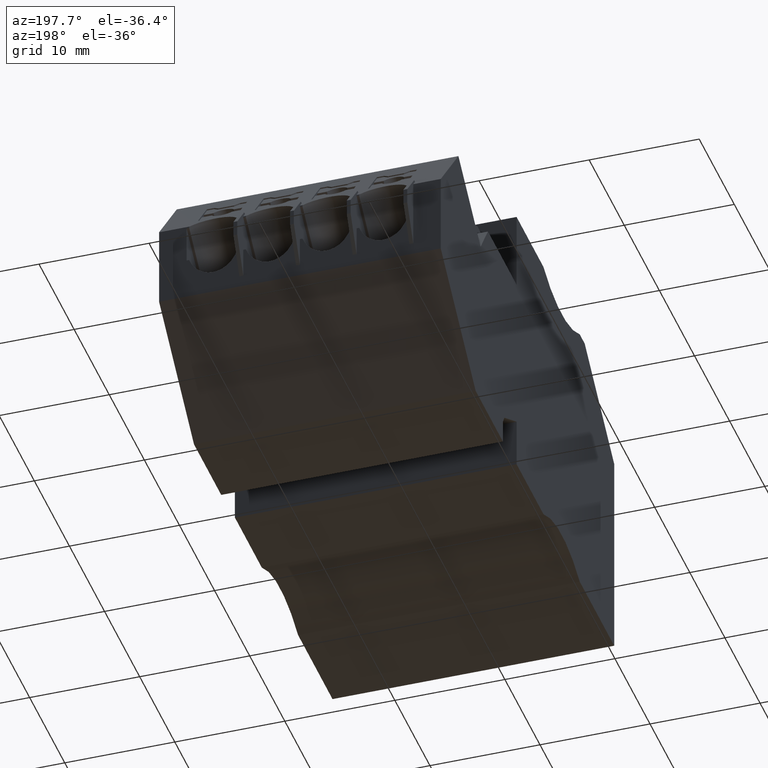
[diagram: clean part render]
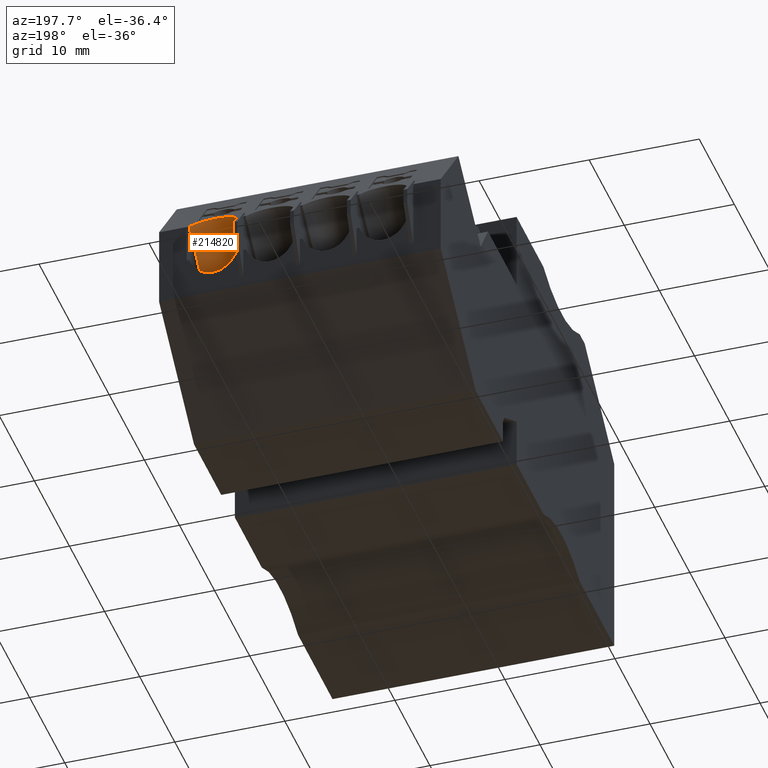
[diagram: same view with one face highlighted and labeled with its STEP entity id]
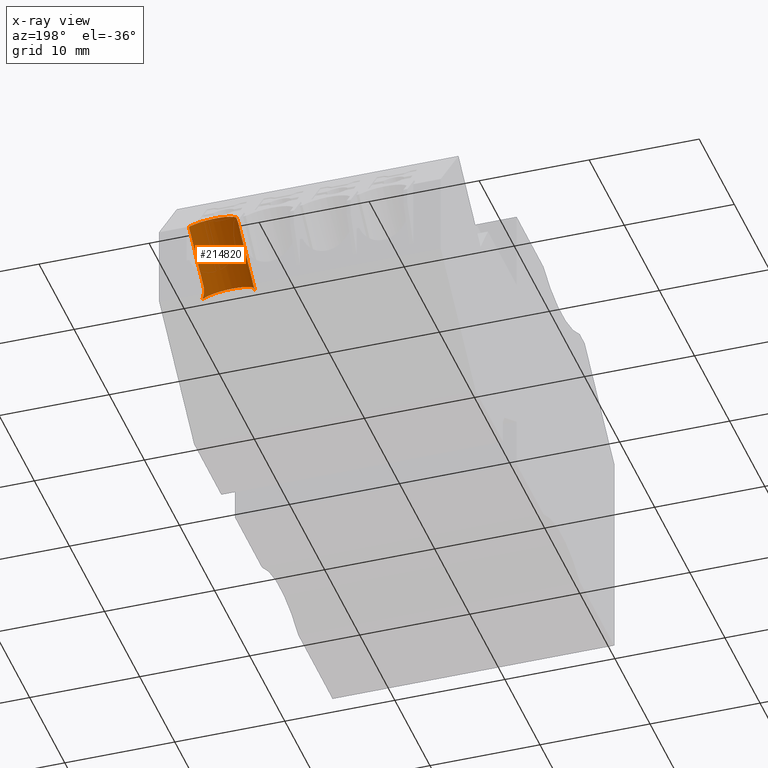
[diagram: x-ray of the same camera — body ghosted, the highlighted face saturated]
A machine part, auxiliary view. The second image highlights one B-rep face of the part: STEP entity #214820.
The next image is the same camera in x-ray: the body ghosted, the highlighted face saturated — about 0% of this face is hidden behind the body in this view.
In plain terms, the highlighted cylindrical surface (edge-blend (fillet) strip) has radius 2.4 mm, axis along (-0, -0.766, -0.6428).
Its self-contained STEP definition (entity closure, byte-faithful):
#58960=CARTESIAN_POINT('',(464.396383044583,680.407457887092,
86.3199999862951));
#58970=DIRECTION('',(0.766044443617069,0.642787609092937,
-4.36836570012154E-10));
#58980=DIRECTION('',(-0.64278760909295,0.766044443617064,
-3.23765527076768E-10));
#58990=AXIS2_PLACEMENT_3D('',#58960,#58970,#58980);
#59000=CONICAL_SURFACE('',#58990,1.4398990952349,0.523598775598301);
#63370=CARTESIAN_POINT('',(466.421141188862,682.106431685554,
88.8199999842733));
#63380=DIRECTION('',(-2.80146045982863E-10,-5.85936008036318E-10,-1.));
#63390=DIRECTION('',(0.642787609095202,-0.766044443615169,
2.68778915406435E-10));
#63400=AXIS2_PLACEMENT_3D('',#63370,#63380,#63390);
#63410=CYLINDRICAL_SURFACE('',#63400,1.030190485256);
#63420=CARTESIAN_POINT('',(467.754961412319,683.225639752233,
86.3199999844305));
#63430=DIRECTION('',(-0.766044443609543,-0.642787609101911,
4.36973645764364E-10));
#63440=DIRECTION('',(-0.642787609101911,0.766044443609544,
-3.23562025759874E-10));
#63450=AXIS2_PLACEMENT_3D('',#63420,#63430,#63440);
#63460=CYLINDRICAL_SURFACE('',#63450,2.40000000000534);
#63470=CARTESIAN_POINT('',(465.743894975341,682.882724157505,
88.4877407442334));
#63480=CARTESIAN_POINT('',(465.733728210567,682.873854558491,
88.4878640153078));
#63490=CARTESIAN_POINT('',(465.723750203626,682.86479773396,
88.4881130848834));
#63500=CARTESIAN_POINT('',(465.713972005326,682.855567308529,
88.4884856706726));
#63510=CARTESIAN_POINT('',(465.704199150745,682.846341927463,
88.4888580528462));
#63520=CARTESIAN_POINT('',(465.694604772856,682.836923673702,
88.4893544524884));
#63530=CARTESIAN_POINT('',(465.685183536963,682.827305301649,
88.4899744726062));
#63540=CARTESIAN_POINT('',(465.666343762943,682.808071311758,
88.4912143352994));
#63550=CARTESIAN_POINT('',(465.648223436327,682.78806072942,
88.4929488511693));
#63560=CARTESIAN_POINT('',(465.630918064624,682.767370298229,
88.495152594131));
#63570=CARTESIAN_POINT('',(465.613612835404,682.746680037391,
88.4973563189482));
#63580=CARTESIAN_POINT('',(465.59712511981,682.72531283497,
88.5000288437646));
#63590=CARTESIAN_POINT('',(465.581534305831,682.703384546178,
88.5031234949533));
#63600=CARTESIAN_POINT('',(465.565943445436,682.681456192103,
88.5062181553551));
#63610=CARTESIAN_POINT('',(465.551251435927,682.658969685399,
88.5097342603518));
#63620=CARTESIAN_POINT('',(465.537514453727,682.636050632372,
88.513608012858));
#63630=CARTESIAN_POINT('',(465.53064601419,682.624591191888,
88.5155448745704));
#63640=CARTESIAN_POINT('',(465.524016102867,682.613023966455,
88.5175708727846));
#63650=CARTESIAN_POINT('',(465.517629414104,682.601364922228,
88.5196768959238));
#63660=CARTESIAN_POINT('',(465.511243616081,682.589707504066,
88.5217826253398));
#63670=CARTESIAN_POINT('',(465.505101004113,682.577960215221,
88.5239677996453));
#63680=CARTESIAN_POINT('',(465.499176146918,682.566076001672,
88.526235356276));
#63690=CARTESIAN_POINT('',(465.487330850709,682.54231643666,
88.5307687786147));
#63700=CARTESIAN_POINT('',(465.476399705324,682.518087727453,
88.5356177970559));
#63710=CARTESIAN_POINT('',(465.466425780554,682.493485848527,
88.5407144015746));
#63720=CARTESIAN_POINT('',(465.456451903556,682.468884087438,
88.5458109816819));
#63730=CARTESIAN_POINT('',(465.447435968388,682.44391079914,
88.5511546093508));
#63740=CARTESIAN_POINT('',(465.439408026665,682.418669470271,
88.5566700366009));
#63750=CARTESIAN_POINT('',(465.431380074861,682.393428109704,
88.5621854707773));
#63760=CARTESIAN_POINT('',(465.424340592779,682.367920292381,
88.5678721463724));
#63770=CARTESIAN_POINT('',(465.418304649975,682.342252194111,
88.5736517166212));
#63780=CARTESIAN_POINT('',(465.412266425516,682.31657439301,
88.5794334716129));
#63790=CARTESIAN_POINT('',(465.407239449841,682.290779840689,
88.5852980694632));
#63800=CARTESIAN_POINT('',(465.40320431194,682.264851856631,
88.5911956394637));
#63810=CARTESIAN_POINT('',(465.399165439488,682.238899876021,
88.5970986677112));
#63820=CARTESIAN_POINT('',(465.39611073125,682.212733337524,
88.6030532939795));
#63830=CARTESIAN_POINT('',(465.394062993916,682.186449292883,
88.6089848983222));
#63840=CARTESIAN_POINT('',(465.392015264608,682.16016535126,
88.6149164794162));
#63850=CARTESIAN_POINT('',(465.390974677164,682.133765290923,
88.6208245637186));
#63860=CARTESIAN_POINT('',(465.390951113458,682.107350688424,
88.6266354208632));
#63870=CARTESIAN_POINT('',(465.390927549725,682.080936056756,
88.6324462844248));
#63880=CARTESIAN_POINT('',(465.391921012787,682.05450836482,
88.6381594503758));
#63890=CARTESIAN_POINT('',(465.393927746271,682.028169438001,
88.6437053556744));
#63900=CARTESIAN_POINT('',(465.395934722687,682.00182732263,
88.6492519323521));
#63910=CARTESIAN_POINT('',(465.398953036614,681.975588642061,
88.6546281794928));
#63920=CARTESIAN_POINT('',(465.402971757939,681.949513088923,
88.6597790736632));
#63930=CARTESIAN_POINT('',(465.406993884341,681.923415441881,
88.6649343322034));
#63940=CARTESIAN_POINT('',(465.412036736446,681.897369665444,
88.6698857098205));
#63950=CARTESIAN_POINT('',(465.41809748531,681.871493896343,
88.6745673914553));
#63960=CARTESIAN_POINT('',(465.424158217982,681.845618196371,
88.6792490605826));
#63970=CARTESIAN_POINT('',(465.431236399512,681.819914736525,
88.6836604763837));
#63980=CARTESIAN_POINT('',(465.439310239432,681.794501528666,
88.6877443469201));
#63990=CARTESIAN_POINT('',(465.447384121278,681.769088188842,
88.6918282386632));
#64000=CARTESIAN_POINT('',(465.456452861483,681.74396744633,
88.6955841161876));
#64010=CARTESIAN_POINT('',(465.466477576682,681.719249785652,
88.6989663479126));
#64020=B_SPLINE_CURVE_WITH_KNOTS('',3,(#63470,#63480,#63490,#63500,
#63510,#63520,#63530,#63540,#63550,#63560,#63570,#63580,#63590,#63600,
#63610,#63620,#63630,#63640,#63650,#63660,#63670,#63680,#63690,#63700,
#63710,#63720,#63730,#63740,#63750,#63760,#63770,#63780,#63790,#63800,
#63810,#63820,#63830,#63840,#63850,#63860,#63870,#63880,#63890,#63900,
#63910,#63920,#63930,#63940,#63950,#63960,#63970,#63980,#63990,#64000,
#64010),.UNSPECIFIED.,.F.,.F.,(4,3,3,3,3,3,3,3,3,3,3,3,3,3,3,3,3,3,4),(
0.,0.0404189289105887,0.0807920273015004,0.161834032942855,
0.243077001978251,0.324226837810591,0.364669004795522,0.405030638602429,
0.485993291710152,0.567143228697294,0.648238819222113,0.729045233551723,
0.809977517010918,0.891100341142566,0.97217476387002,1.05298427384248,
1.13384091501735,1.21480330436618,1.29561422931419),.UNSPECIFIED.);
#64030=SURFACE_CURVE('',#64020,(#63460,#63410),.CURVE_3D.);
#64040=CARTESIAN_POINT('',(465.74389497534,682.882724157505,
88.4877407442334));
#64050=VERTEX_POINT('',#64040);
#64060=CARTESIAN_POINT('',(465.466477576705,681.719249785595,
88.6989663479202));
#64070=VERTEX_POINT('',#64060);
#64080=EDGE_CURVE('',#64050,#64070,#64030,.T.);
#82120=CARTESIAN_POINT('',(465.670271708826,681.476377392659,
83.9199999856324));
#82130=VERTEX_POINT('',#82120);
#82160=CARTESIAN_POINT('',(467.754961411991,683.225639750993,
83.9199999844251));
#82170=DIRECTION('',(-0.766044443609542,-0.64278760910191,
4.36973645764364E-10));
#82180=VECTOR('',#82170,1.);
#82190=LINE('',#82160,#82180);
#82200=CARTESIAN_POINT('',(469.853158774129,684.986236380971,
83.9199999832408));
#82210=VERTEX_POINT('',#82200);
#82220=EDGE_CURVE('',#82210,#82130,#82190,.T.);
#185170=CARTESIAN_POINT('',(469.853158776184,686.448039195061,
84.1972577237183));
#185180=VERTEX_POINT('',#185170);
#185210=CARTESIAN_POINT('',(470.572956147437,685.590218091465,
86.319999982823));
#185220=DIRECTION('',(-0.766044443609541,-0.642787609101909,
4.36973645764363E-10));
#185230=DIRECTION('',(-0.642787609101909,0.766044443609542,
-3.23562025759873E-10));
#185240=AXIS2_PLACEMENT_3D('',#185210,#185220,#185230);
#185250=CIRCLE('',#185240,2.40000000000534);
#185260=CARTESIAN_POINT('',(469.853158776086,686.448039196836,
88.4427422411771));
#185270=VERTEX_POINT('',#185260);
#185280=EDGE_CURVE('',#185270,#185180,#185250,.T.);
#212660=ORIENTED_EDGE('',*,*,#64080,.T.);
#212670=CARTESIAN_POINT('',(467.09289017517,684.014665530355,
88.4877407434757));
#212680=DIRECTION('',(-0.766044443609541,-0.642787609101909,
4.36973645764363E-10));
#212690=VECTOR('',#212680,1.);
#212700=LINE('',#212670,#212690);
#212710=CARTESIAN_POINT('',(469.853158775932,686.330805891583,
88.4877407419012));
#212720=VERTEX_POINT('',#212710);
#212730=EDGE_CURVE('',#212720,#64050,#212700,.T.);
#212740=ORIENTED_EDGE('',*,*,#212730,.T.);
#212750=CARTESIAN_POINT('',(469.853158773916,684.986236381758,
86.3199999832336));
#212760=DIRECTION('',(-1.,1.34569982934711E-9,9.53016587669485E-11));
#212770=DIRECTION('',(-1.3456997738356E-9,-1.,5.66234217872408E-10));
#212780=AXIS2_PLACEMENT_3D('',#212750,#212760,#212770);
#212790=ELLIPSE('',#212780,3.13297749593582,2.40000000000534);
#212800=EDGE_CURVE('',#212720,#185270,#212790,.T.);
#212810=ORIENTED_EDGE('',*,*,#212800,.F.);
#212820=ORIENTED_EDGE('',*,*,#185280,.F.);
#212830=EDGE_CURVE('',#185180,#82210,#212790,.T.);
#212840=ORIENTED_EDGE('',*,*,#212830,.F.);
#212850=ORIENTED_EDGE('',*,*,#82220,.F.);
#212860=CARTESIAN_POINT('',(465.670271708757,681.476377392729,
83.9199999856143));
#212870=CARTESIAN_POINT('',(465.644124579058,681.507538328528,
83.9199999856035));
#212880=CARTESIAN_POINT('',(465.617935386311,681.538749393117,
83.9210348133238));
#212890=CARTESIAN_POINT('',(465.591754541304,681.569950509258,
83.9231105166494));
#212900=CARTESIAN_POINT('',(465.565573746587,681.601151565467,
83.9251862159879));
#212910=CARTESIAN_POINT('',(465.539401694231,681.632342202935,
83.9283027886246));
#212920=CARTESIAN_POINT('',(465.513289968972,681.663460945369,
83.9324580534131));
#212930=CARTESIAN_POINT('',(465.487178258521,681.694579670156,
83.9366133158453));
#212940=CARTESIAN_POINT('',(465.461127275283,681.725626023069,
83.9418072153458));
#212950=CARTESIAN_POINT('',(465.435188480274,681.756538675258,
83.9480291738362));
#212960=CARTESIAN_POINT('',(465.409249665464,681.787451351045,
83.9542511370764));
#212970=CARTESIAN_POINT('',(465.383423434127,681.818229855074,
83.961501052861));
#212980=CARTESIAN_POINT('',(465.357759862123,681.848814509258,
83.9697602232562));
#212990=CARTESIAN_POINT('',(465.332096235581,681.879399228439,
83.9780194112032));
#213000=CARTESIAN_POINT('',(465.306595648458,681.909789644808,
83.987287698741));
#213010=CARTESIAN_POINT('',(465.281305564872,681.939929192829,
83.9975389916872));
#213020=CARTESIAN_POINT('',(465.25601539097,681.970068848485,
84.0077903212431));
#213030=CARTESIAN_POINT('',(465.23093607488,681.999957213587,
84.0190244569976));
#213040=CARTESIAN_POINT('',(465.206111279694,682.029542252487,
84.0312090963129));
#213050=CARTESIAN_POINT('',(465.15654181429,682.088616841069,
84.0555390475764));
#213060=CARTESIAN_POINT('',(465.107626017463,682.146912417777,
84.0838325599739));
#213070=CARTESIAN_POINT('',(465.059555283225,682.20420088811,
84.116072035708));
#213080=CARTESIAN_POINT('',(465.035527719864,682.232835823121,
84.1321865398494));
#213090=CARTESIAN_POINT('',(465.011728549177,682.261198570341,
84.1492763238991));
#213100=CARTESIAN_POINT('',(464.98820568746,682.289232025354,
84.1673148506777));
#213110=CARTESIAN_POINT('',(464.964682863672,682.317265435166,
84.1853533483712));
#213120=CARTESIAN_POINT('',(464.941436711466,682.344969120626,
84.20434033781));
#213130=CARTESIAN_POINT('',(464.91851390136,682.372287461975,
84.224241090048));
#213140=CARTESIAN_POINT('',(464.895591097412,682.399605795987,
84.2441418369405));
#213150=CARTESIAN_POINT('',(464.872991988051,682.426538365813,
84.2649560452519));
#213160=CARTESIAN_POINT('',(464.850760791547,682.453032474168,
84.2866415051409));
#213170=CARTESIAN_POINT('',(464.828529571386,682.479526610717,
84.3083269881069));
#213180=CARTESIAN_POINT('',(464.806666597353,682.505581888619,
84.3308833786364));
#213190=CARTESIAN_POINT('',(464.785212571993,682.531149800473,
84.3542620849613));
#213200=CARTESIAN_POINT('',(464.763758494277,682.55671777472,
84.3776408483374));
#213210=CARTESIAN_POINT('',(464.742713670528,682.581798019083,
84.4018415499332));
#213220=CARTESIAN_POINT('',(464.72211436756,682.606347312453,
84.4268107085605));
#213230=CARTESIAN_POINT('',(464.701514984004,682.630896701866,
84.4517799648727));
#213240=CARTESIAN_POINT('',(464.68136138978,682.65491482024,
84.477517277974));
#213250=CARTESIAN_POINT('',(464.661684648236,682.678364647719,
84.5039661802543));
#213260=CARTESIAN_POINT('',(464.642020379644,682.701799610513,
84.5303983167568));
#213270=CARTESIAN_POINT('',(464.622744961205,682.72477115974,
84.5576580440091));
#213280=CARTESIAN_POINT('',(464.603886503971,682.747245793951,
84.5857231611353));
#213290=CARTESIAN_POINT('',(464.585029067875,682.76971921122,
84.6137867586085));
#213300=CARTESIAN_POINT('',(464.566593102194,682.791690339606,
84.6426495643088));
#213310=CARTESIAN_POINT('',(464.54861791985,682.813112327794,
84.6722644202233));
#213320=CARTESIAN_POINT('',(464.533376554604,682.831276279628,
84.6973751994675));
#213330=CARTESIAN_POINT('',(464.518466604576,682.849045266183,
84.7230262993095));
#213340=CARTESIAN_POINT('',(464.503910808062,682.866392189017,
84.7491845547735));
#213350=CARTESIAN_POINT('',(464.489355025148,682.883739095642,
84.7753427857959));
#213360=CARTESIAN_POINT('',(464.475153514899,682.900663796545,
84.8020079736097));
#213370=CARTESIAN_POINT('',(464.461327331062,682.917141200849,
84.8291434723052));
#213380=CARTESIAN_POINT('',(464.447501150425,682.933618601339,
84.8562789647221));
#213390=CARTESIAN_POINT('',(464.434050407224,682.949648572915,
84.8838845541128));
#213400=CARTESIAN_POINT('',(464.420994058662,682.965208523264,
84.9119207192987));
#213410=CARTESIAN_POINT('',(464.407937704031,682.980768480844,
84.9399568975161));
#213420=CARTESIAN_POINT('',(464.395275844879,682.99585829702,
84.968423426504));
#213430=CARTESIAN_POINT('',(464.383025014736,683.010458267897,
84.9972786167097));
#213440=CARTESIAN_POINT('',(464.370774170202,683.025058255926,
85.0261338408122));
#213450=CARTESIAN_POINT('',(464.358934443454,683.039168292855,
85.0553774941921));
#213460=CARTESIAN_POINT('',(464.347519702158,683.052771851844,
85.0849665281878));
#213470=CARTESIAN_POINT('',(464.336104938964,683.066375436931,
85.1145556189482));
#213480=CARTESIAN_POINT('',(464.325115236185,683.079472454741,
85.1444898560617));
#213490=CARTESIAN_POINT('',(464.314561641137,683.092049739594,
85.1747257464689));
#213500=CARTESIAN_POINT('',(464.304007643314,683.104627504457,
85.2049627908227));
#213510=CARTESIAN_POINT('',(464.293891336716,683.116683649229,
85.2354965514605));
#213520=CARTESIAN_POINT('',(464.284216638233,683.128213505943,
85.2662975611428));
#213530=CARTESIAN_POINT('',(464.274537044695,683.139749196356,
85.2971141550443));
#213540=CARTESIAN_POINT('',(464.265262687306,683.150801945132,
85.3283159885546));
#213550=CARTESIAN_POINT('',(464.256410273254,683.16135184142,
85.3598661661419));
#213560=CARTESIAN_POINT('',(464.247557882039,683.171901710492,
85.3914162623386));
#213570=CARTESIAN_POINT('',(464.239127514749,683.181948631034,
85.4233144844769));
#213580=CARTESIAN_POINT('',(464.231134331851,683.191474535507,
85.455520139629));
#213590=CARTESIAN_POINT('',(464.223141163285,683.201000422899,
85.4877257370311));
#213600=CARTESIAN_POINT('',(464.215585251437,683.210005208027,
85.5202385293769));
#213610=CARTESIAN_POINT('',(464.208479744138,683.218473221914,
85.5530147334426));
#213620=CARTESIAN_POINT('',(464.201374244345,683.226941226855,
85.5857909028848));
#213630=CARTESIAN_POINT('',(464.194719211602,683.234872386072,
85.6188302311674));
#213640=CARTESIAN_POINT('',(464.188525426697,683.242253851519,
85.6520865998615));
#213650=CARTESIAN_POINT('',(464.182331643961,683.249635314382,
85.6853429569118));
#213660=CARTESIAN_POINT('',(464.17659916051,683.256467022164,
85.7188160916221));
#213670=CARTESIAN_POINT('',(464.171336142157,683.262739243227,
85.7524583490119));
#213680=CARTESIAN_POINT('',(464.166073121984,683.26901146646,
85.7861006180343));
#213690=CARTESIAN_POINT('',(464.161279606344,683.274724155978,
85.8199117419927));
#213700=CARTESIAN_POINT('',(464.156961001759,683.279870868541,
85.8538433704837));
#213710=CARTESIAN_POINT('',(464.15264239263,683.285017586517,
85.8877750346665));
#213720=CARTESIAN_POINT('',(464.148798721249,683.289598295726,
85.9218269356213));
#213730=CARTESIAN_POINT('',(464.145432593999,683.29360989,
85.9559509119566));
#213740=CARTESIAN_POINT('',(464.142066460729,683.297621491449,
85.9900749493214));
#213750=CARTESIAN_POINT('',(464.139177885026,683.301063961951,
86.0242707995181));
#213760=CARTESIAN_POINT('',(464.136766738563,683.30393745444,
86.0584914191881));
#213770=CARTESIAN_POINT('',(464.134355585892,683.306810954327,
86.0927121269635));
#213780=CARTESIAN_POINT('',(464.132421862359,683.309115476324,
86.1269573525273));
#213790=CARTESIAN_POINT('',(464.130962882382,683.31085422098,
86.1611821441993));
#213800=CARTESIAN_POINT('',(464.12950467653,683.31259204307,
86.1953887764341));
#213810=CARTESIAN_POINT('',(464.128515050185,683.31377143385,
86.2297039425664));
#213820=CARTESIAN_POINT('',(464.127999938564,683.314385320001,
86.2641014234175));
#213830=CARTESIAN_POINT('',(464.127484849482,683.314999179291,
86.2984973991841));
#213840=CARTESIAN_POINT('',(464.127444509298,683.315047254875,
86.3329693523481));
#213850=CARTESIAN_POINT('',(464.12788325204,683.31452438166,
86.3674710165133));
#213860=CARTESIAN_POINT('',(464.128321993939,683.314001509451,
86.4019726143249));
#213870=CARTESIAN_POINT('',(464.12923982869,683.312907676613,
86.4365036619716));
#213880=CARTESIAN_POINT('',(464.13063850274,683.311240801813,
86.471016090831));
#213890=CARTESIAN_POINT('',(464.13203717514,683.309573928978,
86.5055284789928));
#213900=CARTESIAN_POINT('',(464.133916684038,683.307334017519,
86.5400219784935));
#213910=CARTESIAN_POINT('',(464.136276029228,683.304522259434,
86.5744476317341));
#213920=CARTESIAN_POINT('',(464.13863537331,683.301710502669,
86.6088732688232));
#213930=CARTESIAN_POINT('',(464.141474538206,683.298326917724,
86.6432307864119));
#213940=CARTESIAN_POINT('',(464.144789727815,683.294376028617,
86.6774712275452));
#213950=CARTESIAN_POINT('',(464.148104918177,683.290425138613,
86.7117116764516));
#213960=CARTESIAN_POINT('',(464.151896105383,683.285906977659,
86.745834777399));
#213970=CARTESIAN_POINT('',(464.15615675462,683.280829333642,
86.7797924405842));
#213980=CARTESIAN_POINT('',(464.160417407819,683.275751684903,
86.8137501353482));
#213990=CARTESIAN_POINT('',(464.165147483306,683.270114600465,
86.8475421276099));
#214000=CARTESIAN_POINT('',(464.170337870723,683.263928937628,
86.8811220390715));
#214010=CARTESIAN_POINT('',(464.175528266757,683.257743264524,
86.9147020062731));
#214020=CARTESIAN_POINT('',(464.181178923876,683.251009073617,
86.9480696398033));
#214030=CARTESIAN_POINT('',(464.187278427773,683.243739967948,
86.981181094891));
#214040=CARTESIAN_POINT('',(464.193377946531,683.23647084457,
87.0142926306508));
#214050=CARTESIAN_POINT('',(464.199926251199,683.228666878968,
87.0471477522984));
#214060=CARTESIAN_POINT('',(464.206910008496,683.220343961132,
87.0797059454814));
#214070=CARTESIAN_POINT('',(464.213890448207,683.21202499704,
87.1122486721194));
#214080=CARTESIAN_POINT('',(464.221313581504,683.203178451277,
87.144537197461));
#214090=CARTESIAN_POINT('',(464.229205652085,683.193773047819,
87.1766684086918));
#214100=CARTESIAN_POINT('',(464.237094930096,683.184370972416,
87.2087882504537));
#214110=CARTESIAN_POINT('',(464.245442104829,683.17442319695,
87.2407012466065));
#214120=CARTESIAN_POINT('',(464.254240198364,683.16393803738,
87.2723622250286));
#214130=CARTESIAN_POINT('',(464.263038273821,683.153452899354,
87.304023138395));
#214140=CARTESIAN_POINT('',(464.272287215041,683.142430440435,
87.3354317876786));
#214150=CARTESIAN_POINT('',(464.281977206327,683.130882358513,
87.3665427203031));
#214160=CARTESIAN_POINT('',(464.291667184987,683.119334291639,
87.3976536123881));
#214170=CARTESIAN_POINT('',(464.301798146555,683.107260681799,
87.4284665401729));
#214180=CARTESIAN_POINT('',(464.312357500205,683.094676534155,
87.4589367239019));
#214190=CARTESIAN_POINT('',(464.322916847639,683.082092393919,
87.4894068896947));
#214200=CARTESIAN_POINT('',(464.333904507221,683.068997811142,
87.5195340674811));
#214210=CARTESIAN_POINT('',(464.345305271952,683.055410908819,
87.5492750154954));
#214220=CARTESIAN_POINT('',(464.356706037919,683.041824005021,
87.5790159667361));
#214230=CARTESIAN_POINT('',(464.368519817822,683.02774489038,
87.6083704525307));
#214240=CARTESIAN_POINT('',(464.380729040231,683.013194505712,
87.6372975487748));
#214250=CARTESIAN_POINT('',(464.392938272514,682.998644109276,
87.6662246684144));
#214260=CARTESIAN_POINT('',(464.405542846499,682.983622562945,
87.6947241754609));
#214270=CARTESIAN_POINT('',(464.418523170212,682.968153215525,
87.7227581591109));
#214280=CARTESIAN_POINT('',(464.433831749414,682.949909161262,
87.7558205440357));
#214290=CARTESIAN_POINT('',(464.449662826195,682.93104241863,
87.7882348818866));
#214300=CARTESIAN_POINT('',(464.465981526864,682.911594548478,
87.819945609991));
#214310=CARTESIAN_POINT('',(464.482300292136,682.892146601333,
87.8516564636343));
#214320=CARTESIAN_POINT('',(464.499106420607,682.872117837343,
87.882663296397));
#214330=CARTESIAN_POINT('',(464.516363221417,682.851551982975,
87.9129187065582));
#214340=CARTESIAN_POINT('',(464.533611864662,682.830995850412,
87.9431598145065));
#214350=CARTESIAN_POINT('',(464.551391062557,682.809807427438,
87.9727913028267));
#214360=CARTESIAN_POINT('',(464.569680068143,682.788011439316,
88.0017592343439));
#214370=CARTESIAN_POINT('',(464.587968596246,682.766216020236,
88.0307264095754));
#214380=CARTESIAN_POINT('',(464.606765030736,682.743815301893,
88.059026727192));
#214390=CARTESIAN_POINT('',(464.626038443834,682.720846142579,
88.0865996633011));
#214400=CARTESIAN_POINT('',(464.64531180579,682.697877044213,
88.1141725262458));
#214410=CARTESIAN_POINT('',(464.6650618789,682.674339823616,
88.1410175707403));
#214420=CARTESIAN_POINT('',(464.685252839377,682.650277173914,
88.16707798416));
#214430=CARTESIAN_POINT('',(464.705443774288,682.62621455468,
88.1931383645818));
#214440=CARTESIAN_POINT('',(464.726075297491,682.601626862766,
88.2184137031254));
#214450=CARTESIAN_POINT('',(464.747107455891,682.576561712414,
88.2428526130506));
#214460=CARTESIAN_POINT('',(464.768139615755,682.551496560318,
88.2672915246768));
#214470=CARTESIAN_POINT('',(464.78957208805,682.525954334443,
88.2908936339473));
#214480=CARTESIAN_POINT('',(464.811361731796,682.499986448207,
88.3136143301609));
#214490=CARTESIAN_POINT('',(464.833151406228,682.4740185254,
88.3363350583716));
#214500=CARTESIAN_POINT('',(464.855297913964,682.44762534522,
88.3581740464744));
#214510=CARTESIAN_POINT('',(464.877756040189,682.420860792585,
88.3790944526314));
#214520=CARTESIAN_POINT('',(464.900214229387,682.394096164902,
88.4000149174494));
#214530=CARTESIAN_POINT('',(464.922983692599,682.366960575293,
88.4200165286795));
#214540=CARTESIAN_POINT('',(464.946018432164,682.339508841636,
88.4390708420856));
#214550=CARTESIAN_POINT('',(464.969057113271,682.312052410632,
88.4581284159312));
#214560=CARTESIAN_POINT('',(464.99234378805,682.284300432279,
88.4762256751995));
#214570=CARTESIAN_POINT('',(465.015881665172,682.256249082628,
88.4933784201045));
#214580=CARTESIAN_POINT('',(465.039438480653,682.22817516312,
88.5105449659497));
#214590=CARTESIAN_POINT('',(465.063329649086,682.199702777279,
88.5268241935663));
#214600=CARTESIAN_POINT('',(465.08751516111,682.170879606406,
88.5421749298042));
#214610=CARTESIAN_POINT('',(465.111700581272,682.142056545009,
88.557525607737));
#214620=CARTESIAN_POINT('',(465.136180014737,682.112883092201,
88.5719475228479));
#214630=CARTESIAN_POINT('',(465.1609090282,682.083412201533,
88.5854046738816));
#214640=CARTESIAN_POINT('',(465.185637983917,682.053941379683,
88.5988617934911));
#214650=CARTESIAN_POINT('',(465.210616158625,682.024173550204,
88.611353915293));
#214660=CARTESIAN_POINT('',(465.235795768064,681.99416566016,
88.6228516890437));
#214670=CARTESIAN_POINT('',(465.260975353228,681.964157799046,
88.6343494517095));
#214680=CARTESIAN_POINT('',(465.286355991678,681.933910331955,
88.6448526770068));
#214690=CARTESIAN_POINT('',(465.311887696612,681.903482830838,
88.6543396878305));
#214700=CARTESIAN_POINT('',(465.337419410934,681.873055318532,
88.6638267021425));
#214710=CARTESIAN_POINT('',(465.363101799853,681.842448239233,
88.6722973620594));
#214720=CARTESIAN_POINT('',(465.388883892929,681.811722337147,
88.6797382477886));
#214730=CARTESIAN_POINT('',(465.414666030207,681.780996382382,
88.687179146275));
#214740=CARTESIAN_POINT('',(465.440547479424,681.750152072256,
88.6935901836502));
#214750=CARTESIAN_POINT('',(465.466477576617,681.719249785729,
88.698966347899));
#214760=B_SPLINE_CURVE_WITH_KNOTS('',3,(#212860,#212870,#212880,#212890,
#212900,#212910,#212920,#212930,#212940,#212950,#212960,#212970,#212980,
#212990,#213000,#213010,#213020,#213030,#213040,#213050,#213060,#213070,
#213080,#213090,#213100,#213110,#213120,#213130,#213140,#213150,#213160,
#213170,#213180,#213190,#213200,#213210,#213220,#213230,#213240,#213250,
#213260,#213270,#213280,#213290,#213300,#213310,#213320,#213330,#213340,
#213350,#213360,#213370,#213380,#213390,#213400,#213410,#213420,#213430,
#213440,#213450,#213460,#213470,#213480,#213490,#213500,#213510,#213520,
#213530,#213540,#213550,#213560,#213570,#213580,#213590,#213600,#213610,
#213620,#213630,#213640,#213650,#213660,#213670,#213680,#213690,#213700,
#213710,#213720,#213730,#213740,#213750,#213760,#213770,#213780,#213790,
#213800,#213810,#213820,#213830,#213840,#213850,#213860,#213870,#213880,
#213890,#213900,#213910,#213920,#213930,#213940,#213950,#213960,#213970,
#213980,#213990,#214000,#214010,#214020,#214030,#214040,#214050,#214060,
#214070,#214080,#214090,#214100,#214110,#214120,#214130,#214140,#214150,
#214160,#214170,#214180,#214190,#214200,#214210,#214220,#214230,#214240,
#214250,#214260,#214270,#214280,#214290,#214300,#214310,#214320,#214330,
#214340,#214350,#214360,#214370,#214380,#214390,#214400,#214410,#214420,
#214430,#214440,#214450,#214460,#214470,#214480,#214490,#214500,#214510,
#214520,#214530,#214540,#214550,#214560,#214570,#214580,#214590,#214600,
#214610,#214620,#214630,#214640,#214650,#214660,#214670,#214680,#214690,
#214700,#214710,#214720,#214730,#214740,#214750),.UNSPECIFIED.,.F.,.F.,(
4,3,3,3,3,3,3,3,3,3,3,3,3,3,3,3,3,3,3,3,3,3,3,3,3,3,3,3,3,3,3,3,3,3,3,3,
3,3,3,3,3,3,3,3,3,3,3,3,3,3,3,3,3,3,3,3,3,3,3,3,3,3,3,4),(0.,
0.122203827168845,0.244643683680575,0.367155009576453,0.48957031743321,
0.611726063434829,0.733469789630139,0.976855834598431,1.09912651185758,
1.22159692389104,1.34410125355457,1.46647229798384,1.5885483594199,
1.71018051254222,1.8317230923138,1.95372969733813,2.05744011235421,
2.16128579393798,2.26516552030074,2.36897707313305,2.47262023845367,
2.57599990714577,2.67903225511069,2.78212474343683,2.88555388876014,
2.98923140194137,3.09306111438264,3.1969422747518,3.30077262295646,
3.40445138889736,3.50788236551339,3.61097720367014,3.71400756760364,
3.81738531176427,3.92102712244802,4.02483793251664,4.12871755002141,
4.23256375982518,4.33627532461125,4.4397550347319,4.5429129550736,
4.64590060427811,4.74922442366547,4.85282776305506,4.95661675370139,
5.06049185277114,5.16435097688669,5.26809250973852,5.39015720826286,
5.51177376216896,5.63332985869747,5.75534849957071,5.87768542953977,
6.00018038590086,6.12266654771458,6.2449774530954,6.36695394133551,
6.488467421216,6.61013736331534,6.73224073374135,6.85462738946098,
6.97713497958371,7.09959616857816,7.22184551789109),.UNSPECIFIED.);
#214770=SURFACE_CURVE('',#214760,(#63460,#59000),.CURVE_3D.);
#214780=EDGE_CURVE('',#82130,#64070,#214770,.T.);
#214790=ORIENTED_EDGE('',*,*,#214780,.F.);
#214800=EDGE_LOOP('',(#214790,#212850,#212840,#212820,#212810,#212740,
#212660));
#214810=FACE_OUTER_BOUND('',#214800,.T.);
#214820=ADVANCED_FACE('',(#214810),#63460,.F.);